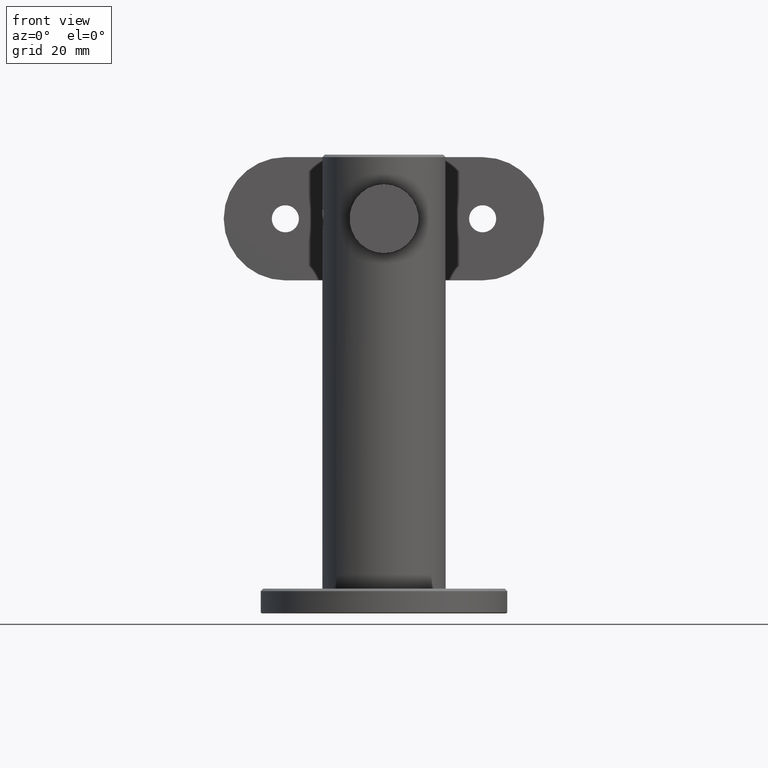
[diagram: clean part render]
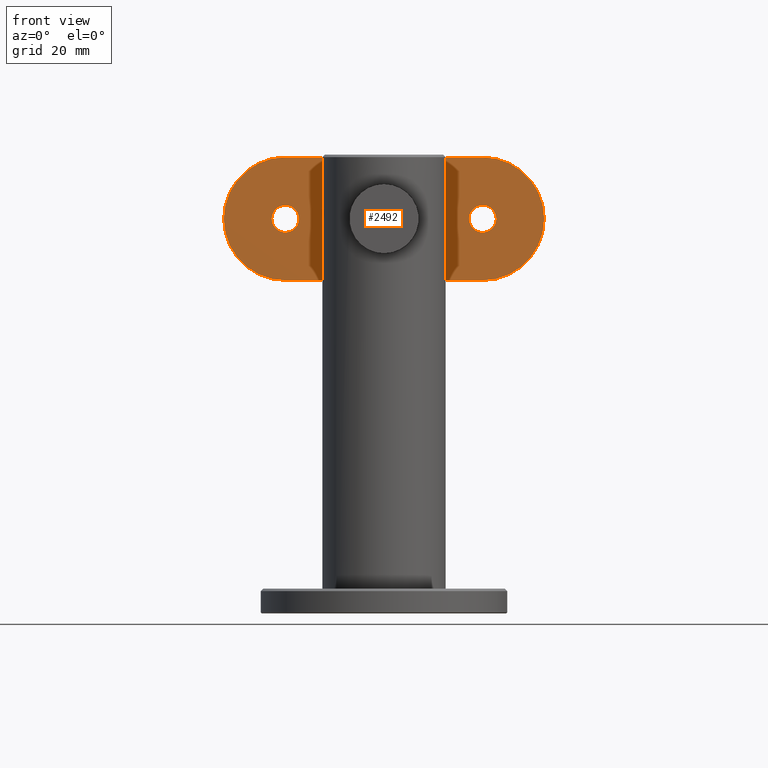
[diagram: same view with one face highlighted and labeled with its STEP entity id]
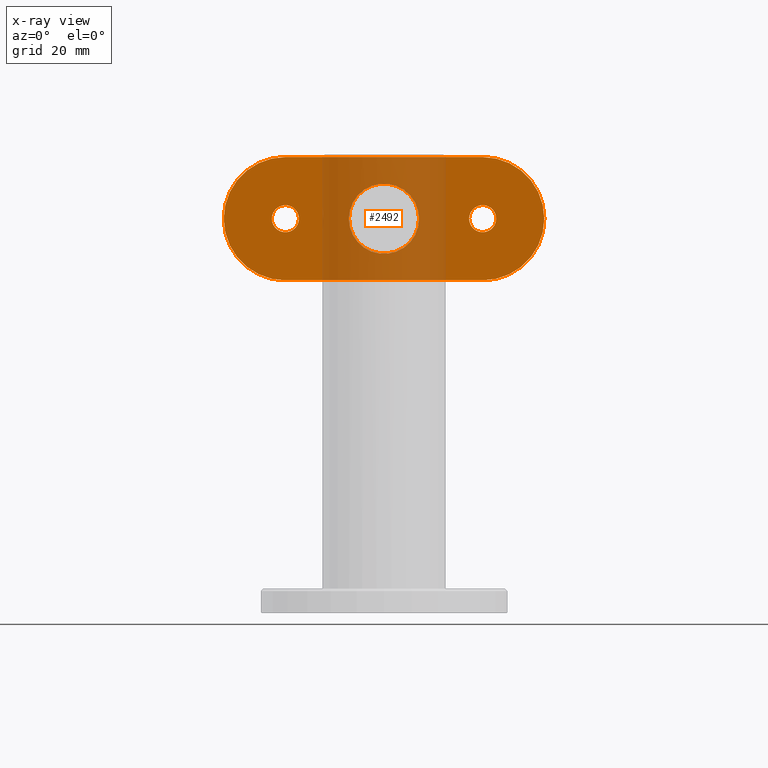
[diagram: x-ray of the same camera — body ghosted, the highlighted face saturated]
A machine part, front view. The second image highlights one B-rep face of the part: STEP entity #2492.
The next image is the same camera in x-ray: the body ghosted, the highlighted face saturated — about 36% of this face is hidden behind the body in this view.
In plain terms, the highlighted planar face has unit normal (0, 1, 0).
Its self-contained STEP definition (entity closure, byte-faithful):
#33 = DIRECTION ( 'NONE',  ( 8.881784197001252300E-016, 0.0000000000000000000, 1.000000000000000000 ) ) ;
#762 = AXIS2_PLACEMENT_3D ( 'NONE', #14174, #9739, #11078 ) ;
#782 = EDGE_CURVE ( 'NONE', #7000, #8479, #4995, .T. ) ;
#1200 = CARTESIAN_POINT ( 'NONE',  ( 12.50000000000000000, -3.370833141065685400E-015, -20.00000000000000400 ) ) ;
#1457 = EDGE_CURVE ( 'NONE', #11234, #14831, #6839, .T. ) ;
#1468 = CARTESIAN_POINT ( 'NONE',  ( 4.694321675334250400E-015, -3.469446951953614200E-015, 20.00000000000000000 ) ) ;
#1641 = PLANE ( 'NONE',  #6912 ) ;
#1659 = CARTESIAN_POINT ( 'NONE',  ( 0.0000000000000000000, -3.469446951953614200E-015, -20.00000000000000400 ) ) ;
#1900 = CARTESIAN_POINT ( 'NONE',  ( 4.694321675334250400E-015, -3.469446951953614200E-015, -17.25000000000000000 ) ) ;
#2492 = ADVANCED_FACE ( 'NONE', ( #8668, #14197, #16300, #3818 ), #1641, .F. ) ;
#2506 = ORIENTED_EDGE ( 'NONE', *, *, #3059, .T. ) ;
#2523 = CARTESIAN_POINT ( 'NONE',  ( 4.694321675334250400E-015, -3.469446951953614200E-015, -20.00000000000000000 ) ) ;
#2531 = VERTEX_POINT ( 'NONE', #3475 ) ;
#2541 = AXIS2_PLACEMENT_3D ( 'NONE', #3229, #10758, #6169 ) ;
#2980 = VERTEX_POINT ( 'NONE', #15335 ) ;
#3059 = EDGE_CURVE ( 'NONE', #2980, #2980, #3596, .T. ) ;
#3160 = VECTOR ( 'NONE', #18509, 1000.000000000000000 ) ;
#3167 = DIRECTION ( 'NONE',  ( -0.0000000000000000000, -1.000000000000000000, 0.0000000000000000000 ) ) ;
#3229 = CARTESIAN_POINT ( 'NONE',  ( 0.0000000000000000000, -3.370833141065685400E-015, 20.00000000000000000 ) ) ;
#3475 = CARTESIAN_POINT ( 'NONE',  ( 0.0000000000000000000, -3.469446951953614200E-015, 7.099999999999997900 ) ) ;
#3596 = CIRCLE ( 'NONE', #10649, 2.749999999999999100 ) ;
#3818 = FACE_OUTER_BOUND ( 'NONE', #10982, .T. ) ;
#4785 = DIRECTION ( 'NONE',  ( -0.0000000000000000000, -1.000000000000000000, 0.0000000000000000000 ) ) ;
#4912 = DIRECTION ( 'NONE',  ( 0.0000000000000000000, 0.0000000000000000000, 1.000000000000000000 ) ) ;
#4995 = CIRCLE ( 'NONE', #7538, 12.50000000000000000 ) ;
#5230 = LINE ( 'NONE', #10614, #10114 ) ;
#5266 = VERTEX_POINT ( 'NONE', #1900 ) ;
#5714 = ORIENTED_EDGE ( 'NONE', *, *, #12081, .T. ) ;
#6008 = DIRECTION ( 'NONE',  ( 0.0000000000000000000, 1.000000000000000000, -0.0000000000000000000 ) ) ;
#6169 = DIRECTION ( 'NONE',  ( 0.0000000000000000000, 0.0000000000000000000, 1.000000000000000000 ) ) ;
#6220 = ORIENTED_EDGE ( 'NONE', *, *, #7233, .T. ) ;
#6449 = CARTESIAN_POINT ( 'NONE',  ( 0.0000000000000000000, -3.370833141065685400E-015, 32.50000000000000000 ) ) ;
#6694 = CIRCLE ( 'NONE', #6695, 12.50000000000000000 ) ;
#6695 = AXIS2_PLACEMENT_3D ( 'NONE', #9489, #18333, #11072 ) ;
#6766 = EDGE_CURVE ( 'NONE', #8479, #14831, #10467, .T. ) ;
#6839 = LINE ( 'NONE', #8188, #3160 ) ;
#6912 = AXIS2_PLACEMENT_3D ( 'NONE', #11886, #6008, #8804 ) ;
#7000 = VERTEX_POINT ( 'NONE', #16217 ) ;
#7105 = VERTEX_POINT ( 'NONE', #6449 ) ;
#7147 = ORIENTED_EDGE ( 'NONE', *, *, #8695, .T. ) ;
#7211 = CIRCLE ( 'NONE', #762, 7.099999999999998800 ) ;
#7233 = EDGE_CURVE ( 'NONE', #2531, #2531, #7211, .T. ) ;
#7538 = AXIS2_PLACEMENT_3D ( 'NONE', #1659, #3167, #33 ) ;
#7560 = CARTESIAN_POINT ( 'NONE',  ( 0.0000000000000000000, -3.370833141065685400E-015, -32.50000000000000000 ) ) ;
#7845 = CARTESIAN_POINT ( 'NONE',  ( 0.0000000000000000000, -3.469446951953614200E-015, -20.00000000000000400 ) ) ;
#7952 = EDGE_LOOP ( 'NONE', ( #14240 ) ) ;
#7984 = EDGE_CURVE ( 'NONE', #5266, #5266, #18989, .T. ) ;
#8188 = CARTESIAN_POINT ( 'NONE',  ( 12.50000000000000000, -3.370833141065685400E-015, 32.50000000000000000 ) ) ;
#8479 = VERTEX_POINT ( 'NONE', #7560 ) ;
#8509 = DIRECTION ( 'NONE',  ( 0.0000000000000000000, 1.000000000000000000, 0.0000000000000000000 ) ) ;
#8635 = DIRECTION ( 'NONE',  ( 0.0000000000000000000, 1.000000000000000000, 0.0000000000000000000 ) ) ;
#8668 = FACE_BOUND ( 'NONE', #13646, .T. ) ;
#8695 = EDGE_CURVE ( 'NONE', #11234, #7105, #6694, .T. ) ;
#8804 = DIRECTION ( 'NONE',  ( 0.0000000000000000000, 0.0000000000000000000, 1.000000000000000000 ) ) ;
#9489 = CARTESIAN_POINT ( 'NONE',  ( 0.0000000000000000000, -3.370833141065685400E-015, 20.00000000000000000 ) ) ;
#9609 = EDGE_LOOP ( 'NONE', ( #2506 ) ) ;
#9739 = DIRECTION ( 'NONE',  ( 0.0000000000000000000, 1.000000000000000000, -0.0000000000000000000 ) ) ;
#10114 = VECTOR ( 'NONE', #17916, 1000.000000000000000 ) ;
#10120 = DIRECTION ( 'NONE',  ( 0.0000000000000000000, 0.0000000000000000000, 1.000000000000000000 ) ) ;
#10124 = VERTEX_POINT ( 'NONE', #14780 ) ;
#10467 = CIRCLE ( 'NONE', #16991, 12.50000000000000000 ) ;
#10614 = CARTESIAN_POINT ( 'NONE',  ( -12.50000000000000000, -3.370833141065685400E-015, 32.50000000000000000 ) ) ;
#10649 = AXIS2_PLACEMENT_3D ( 'NONE', #1468, #8635, #14756 ) ;
#10758 = DIRECTION ( 'NONE',  ( -0.0000000000000000000, -1.000000000000000000, 0.0000000000000000000 ) ) ;
#10982 = EDGE_LOOP ( 'NONE', ( #7147, #14700, #5714, #12023, #18958, #11017 ) ) ;
#11017 = ORIENTED_EDGE ( 'NONE', *, *, #1457, .F. ) ;
#11023 = CIRCLE ( 'NONE', #2541, 12.50000000000000000 ) ;
#11072 = DIRECTION ( 'NONE',  ( 0.0000000000000000000, 0.0000000000000000000, 1.000000000000000000 ) ) ;
#11078 = DIRECTION ( 'NONE',  ( 0.0000000000000000000, 0.0000000000000000000, 1.000000000000000000 ) ) ;
#11234 = VERTEX_POINT ( 'NONE', #13812 ) ;
#11674 = EDGE_CURVE ( 'NONE', #7105, #10124, #11023, .T. ) ;
#11886 = CARTESIAN_POINT ( 'NONE',  ( 12.50000000000000000, -3.370833141065685400E-015, 32.50000000000000000 ) ) ;
#12023 = ORIENTED_EDGE ( 'NONE', *, *, #782, .T. ) ;
#12081 = EDGE_CURVE ( 'NONE', #10124, #7000, #5230, .T. ) ;
#13646 = EDGE_LOOP ( 'NONE', ( #6220 ) ) ;
#13812 = CARTESIAN_POINT ( 'NONE',  ( 12.50000000000000000, -3.370833141065685400E-015, 20.00000000000000000 ) ) ;
#14174 = CARTESIAN_POINT ( 'NONE',  ( 0.0000000000000000000, -3.469446951953614200E-015, -4.716409878269596000E-016 ) ) ;
#14197 = FACE_BOUND ( 'NONE', #9609, .T. ) ;
#14240 = ORIENTED_EDGE ( 'NONE', *, *, #7984, .T. ) ;
#14362 = AXIS2_PLACEMENT_3D ( 'NONE', #2523, #8509, #10120 ) ;
#14700 = ORIENTED_EDGE ( 'NONE', *, *, #11674, .T. ) ;
#14756 = DIRECTION ( 'NONE',  ( 0.0000000000000000000, 0.0000000000000000000, 1.000000000000000000 ) ) ;
#14780 = CARTESIAN_POINT ( 'NONE',  ( -12.50000000000000000, -3.370833141065685400E-015, 20.00000000000000000 ) ) ;
#14831 = VERTEX_POINT ( 'NONE', #1200 ) ;
#15335 = CARTESIAN_POINT ( 'NONE',  ( 4.694321675334250400E-015, -3.469446951953614200E-015, 22.75000000000000000 ) ) ;
#16217 = CARTESIAN_POINT ( 'NONE',  ( -12.50000000000000000, -3.370833141065685400E-015, -20.00000000000000400 ) ) ;
#16300 = FACE_BOUND ( 'NONE', #7952, .T. ) ;
#16991 = AXIS2_PLACEMENT_3D ( 'NONE', #7845, #4785, #4912 ) ;
#17916 = DIRECTION ( 'NONE',  ( -0.0000000000000000000, -0.0000000000000000000, -1.000000000000000000 ) ) ;
#18333 = DIRECTION ( 'NONE',  ( -0.0000000000000000000, -1.000000000000000000, 0.0000000000000000000 ) ) ;
#18509 = DIRECTION ( 'NONE',  ( -0.0000000000000000000, -0.0000000000000000000, -1.000000000000000000 ) ) ;
#18958 = ORIENTED_EDGE ( 'NONE', *, *, #6766, .T. ) ;
#18989 = CIRCLE ( 'NONE', #14362, 2.749999999999999100 ) ;